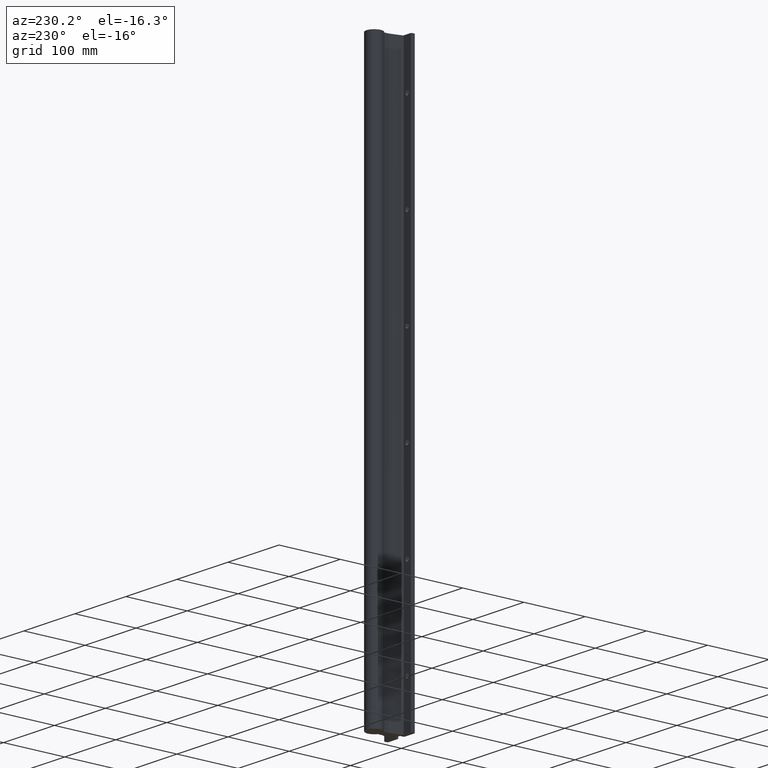
[diagram: clean part render]
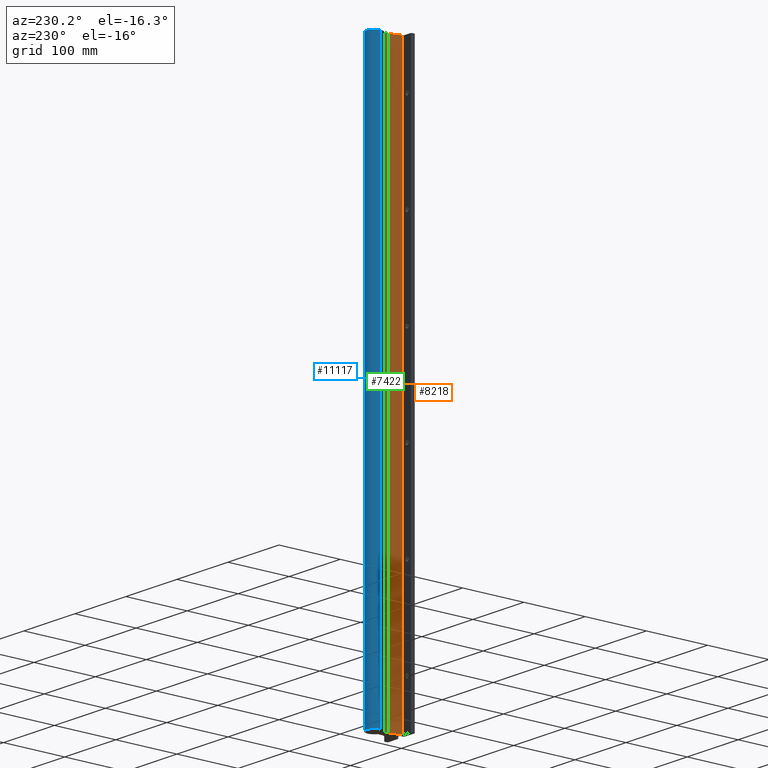
[diagram: same view with three faces highlighted in distinct colors, each labeled with its STEP entity id]
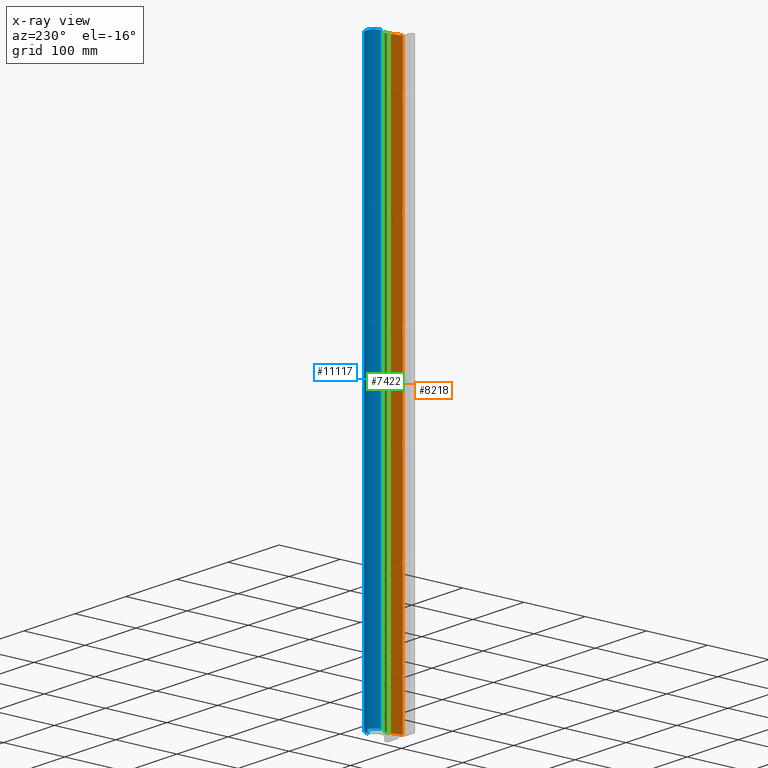
[diagram: x-ray of the same camera — body ghosted, the three highlighted faces saturated]
A machine part, auxiliary view with three faces highlighted in distinct colors.
The next image is the same camera in x-ray (body ghosted, the three faces saturated) — at least one of them is partly hidden behind the body in this view.
Their STEP definitions:

[orange] entity #8218 — the highlighted planar face has unit normal (-0.9703, 0.2419, 0).
#521 = ORIENTED_EDGE ( 'NONE', *, *, #12620, .F. ) ;
#1130 = EDGE_CURVE ( 'NONE', #5240, #2445, #12852, .T. ) ;
#1332 = CARTESIAN_POINT ( 'NONE',  ( -0.2518565171033020911, 1.039099745799999752, -38.49573696227415098 ) ) ;
#1746 = VECTOR ( 'NONE', #11034, 39.37007874015748143 ) ;
#2265 = CARTESIAN_POINT ( 'NONE',  ( -0.4367880495033029109, 0.2973798815999998402, -36.00000000000000000 ) ) ;
#2368 = LINE ( 'NONE', #5565, #5294 ) ;
#2445 = VERTEX_POINT ( 'NONE', #8490 ) ;
#2457 = VERTEX_POINT ( 'NONE', #12541 ) ;
#2466 = CARTESIAN_POINT ( 'NONE',  ( -0.4367880495033028554, 0.2973798815999998402, 0.000000000000000000 ) ) ;
#2655 = DIRECTION ( 'NONE',  ( -0.2419218955872280419, -0.9702957262790979920, 0.000000000000000000 ) ) ;
#3183 = VECTOR ( 'NONE', #13726, 39.37007874015748143 ) ;
#4263 = ORIENTED_EDGE ( 'NONE', *, *, #1130, .F. ) ;
#4444 = VECTOR ( 'NONE', #9186, 39.37007874015748854 ) ;
#5203 = CARTESIAN_POINT ( 'NONE',  ( -0.2518565171033020911, 1.039099745799999752, 0.000000000000000000 ) ) ;
#5240 = VERTEX_POINT ( 'NONE', #2265 ) ;
#5294 = VECTOR ( 'NONE', #8921, 39.37007874015748143 ) ;
#5565 = CARTESIAN_POINT ( 'NONE',  ( -0.4367880495033031329, 0.2973798815999998402, -38.49573696227415098 ) ) ;
#6919 = AXIS2_PLACEMENT_3D ( 'NONE', #8403, #9205, #2655 ) ;
#7771 = PLANE ( 'NONE',  #6919 ) ;
#7789 = EDGE_CURVE ( 'NONE', #2457, #9884, #10364, .T. ) ;
#8218 = ADVANCED_FACE ( 'NONE', ( #9431 ), #7771, .T. ) ;
#8403 = CARTESIAN_POINT ( 'NONE',  ( -0.2518565171033020911, 1.039099745799999752, -38.49573696227415098 ) ) ;
#8490 = CARTESIAN_POINT ( 'NONE',  ( -0.2518565171033020356, 1.039099745799999752, -36.00000000000000000 ) ) ;
#8921 = DIRECTION ( 'NONE',  ( 0.000000000000000000, 0.000000000000000000, 1.000000000000000000 ) ) ;
#9162 = CARTESIAN_POINT ( 'NONE',  ( -0.2518565171033020911, 1.039099745799999752, -36.00000000000000000 ) ) ;
#9186 = DIRECTION ( 'NONE',  ( -0.2419218955872280141, -0.9702957262790979920, 0.000000000000000000 ) ) ;
#9205 = DIRECTION ( 'NONE',  ( -0.9702957262790981030, 0.2419218955872280696, 0.000000000000000000 ) ) ;
#9431 = FACE_OUTER_BOUND ( 'NONE', #11991, .T. ) ;
#9884 = VERTEX_POINT ( 'NONE', #2466 ) ;
#10364 = LINE ( 'NONE', #5203, #4444 ) ;
#10847 = ORIENTED_EDGE ( 'NONE', *, *, #12579, .T. ) ;
#10895 = LINE ( 'NONE', #1332, #1746 ) ;
#11034 = DIRECTION ( 'NONE',  ( 0.000000000000000000, 0.000000000000000000, 1.000000000000000000 ) ) ;
#11991 = EDGE_LOOP ( 'NONE', ( #4263, #10847, #13146, #521 ) ) ;
#12541 = CARTESIAN_POINT ( 'NONE',  ( -0.2518565171033020356, 1.039099745799999752, 0.000000000000000000 ) ) ;
#12579 = EDGE_CURVE ( 'NONE', #5240, #9884, #2368, .T. ) ;
#12620 = EDGE_CURVE ( 'NONE', #2445, #2457, #10895, .T. ) ;
#12852 = LINE ( 'NONE', #9162, #3183 ) ;
#13146 = ORIENTED_EDGE ( 'NONE', *, *, #7789, .F. ) ;
#13726 = DIRECTION ( 'NONE',  ( 0.2419218955872280419, 0.9702957262790979920, -0.000000000000000000 ) ) ;

[blue] entity #11117 — the highlighted cylindrical surface (edge-blend (fillet) strip) has radius 12.7 mm, axis along (0, 0, 1).
#352 = ORIENTED_EDGE ( 'NONE', *, *, #564, .F. ) ;
#355 = VERTEX_POINT ( 'NONE', #7696 ) ;
#564 = EDGE_CURVE ( 'NONE', #8241, #6719, #2088, .T. ) ;
#1055 = ORIENTED_EDGE ( 'NONE', *, *, #1131, .F. ) ;
#1131 = EDGE_CURVE ( 'NONE', #6719, #355, #10565, .T. ) ;
#1420 = DIRECTION ( 'NONE',  ( 0.000000000000000000, 0.000000000000000000, 1.000000000000000000 ) ) ;
#1612 = DIRECTION ( 'NONE',  ( 0.000000000000000000, 0.000000000000000000, 1.000000000000000000 ) ) ;
#1873 = AXIS2_PLACEMENT_3D ( 'NONE', #13480, #9376, #3918 ) ;
#2088 = LINE ( 'NONE', #6342, #6292 ) ;
#2583 = LINE ( 'NONE', #5579, #9837 ) ;
#3918 = DIRECTION ( 'NONE',  ( 1.000000000000000000, 0.000000000000000000, 0.000000000000000000 ) ) ;
#4176 = CARTESIAN_POINT ( 'NONE',  ( 0.000000000000000000, 1.750000000000000000, 0.000000000000000000 ) ) ;
#4228 = DIRECTION ( 'NONE',  ( 0.000000000000000000, 0.000000000000000000, 1.000000000000000000 ) ) ;
#4935 = FACE_OUTER_BOUND ( 'NONE', #9922, .T. ) ;
#4987 = ORIENTED_EDGE ( 'NONE', *, *, #9632, .T. ) ;
#5168 = DIRECTION ( 'NONE',  ( 1.000000000000000000, 0.000000000000000000, 0.000000000000000000 ) ) ;
#5579 = CARTESIAN_POINT ( 'NONE',  ( -0.5000000000000000000, 1.750000000000000000, -36.00000000000000000 ) ) ;
#6292 = VECTOR ( 'NONE', #4228, 39.37007874015748143 ) ;
#6342 = CARTESIAN_POINT ( 'NONE',  ( 0.5000000000000000000, 1.750000000000000000, -36.00000000000000000 ) ) ;
#6719 = VERTEX_POINT ( 'NONE', #11121 ) ;
#7193 = ORIENTED_EDGE ( 'NONE', *, *, #9238, .T. ) ;
#7696 = CARTESIAN_POINT ( 'NONE',  ( -0.5000000000000000000, 1.750000000000000000, 0.000000000000000000 ) ) ;
#8241 = VERTEX_POINT ( 'NONE', #8932 ) ;
#8577 = AXIS2_PLACEMENT_3D ( 'NONE', #12422, #1612, #9061 ) ;
#8932 = CARTESIAN_POINT ( 'NONE',  ( 0.5000000000000000000, 1.750000000000000000, -36.00000000000000000 ) ) ;
#9061 = DIRECTION ( 'NONE',  ( 1.000000000000000000, 0.000000000000000000, 0.000000000000000000 ) ) ;
#9238 = EDGE_CURVE ( 'NONE', #13126, #355, #2583, .T. ) ;
#9376 = DIRECTION ( 'NONE',  ( 0.000000000000000000, 0.000000000000000000, 1.000000000000000000 ) ) ;
#9496 = CARTESIAN_POINT ( 'NONE',  ( -0.5000000000000000000, 1.750000000000000000, -36.00000000000000000 ) ) ;
#9632 = EDGE_CURVE ( 'NONE', #8241, #13126, #13422, .T. ) ;
#9837 = VECTOR ( 'NONE', #1420, 39.37007874015748143 ) ;
#9922 = EDGE_LOOP ( 'NONE', ( #4987, #7193, #1055, #352 ) ) ;
#10037 = CYLINDRICAL_SURFACE ( 'NONE', #8577, 0.5000000000000000000 ) ;
#10565 = CIRCLE ( 'NONE', #12567, 0.5000000000000000000 ) ;
#11117 = ADVANCED_FACE ( 'NONE', ( #4935 ), #10037, .T. ) ;
#11121 = CARTESIAN_POINT ( 'NONE',  ( 0.5000000000000000000, 1.750000000000000000, 0.000000000000000000 ) ) ;
#12422 = CARTESIAN_POINT ( 'NONE',  ( 0.000000000000000000, 1.750000000000000000, -36.00000000000000000 ) ) ;
#12567 = AXIS2_PLACEMENT_3D ( 'NONE', #4176, #13654, #5168 ) ;
#13126 = VERTEX_POINT ( 'NONE', #9496 ) ;
#13422 = CIRCLE ( 'NONE', #1873, 0.5000000000000000000 ) ;
#13480 = CARTESIAN_POINT ( 'NONE',  ( 0.000000000000000000, 1.750000000000000000, -36.00000000000000000 ) ) ;
#13654 = DIRECTION ( 'NONE',  ( 0.000000000000000000, 0.000000000000000000, 1.000000000000000000 ) ) ;

[green] entity #7422 — the highlighted planar face has unit normal (-1, 0, 0).
#567 = EDGE_CURVE ( 'NONE', #12707, #3869, #2427, .T. ) ;
#1134 = CARTESIAN_POINT ( 'NONE',  ( -0.2500000000033027470, 1.305666897938102977, -38.49573696227415098 ) ) ;
#1679 = CARTESIAN_POINT ( 'NONE',  ( -0.2500000000033027470, 1.305666897938102977, -36.00000000000000000 ) ) ;
#2007 = LINE ( 'NONE', #3024, #7921 ) ;
#2427 = LINE ( 'NONE', #1134, #9858 ) ;
#2652 = DIRECTION ( 'NONE',  ( 0.000000000000000000, 0.000000000000000000, 1.000000000000000000 ) ) ;
#2946 = EDGE_LOOP ( 'NONE', ( #7817, #11256, #11822, #8517 ) ) ;
#3024 = CARTESIAN_POINT ( 'NONE',  ( -0.2500000000033027470, 1.054219864300000475, -38.49573696227415098 ) ) ;
#3272 = CARTESIAN_POINT ( 'NONE',  ( -0.2500000000033027470, 1.054219864300000475, -36.00000000000000000 ) ) ;
#3499 = DIRECTION ( 'NONE',  ( 0.000000000000000000, -1.000000000000000000, 0.000000000000000000 ) ) ;
#3869 = VERTEX_POINT ( 'NONE', #4306 ) ;
#4172 = VERTEX_POINT ( 'NONE', #5613 ) ;
#4203 = DIRECTION ( 'NONE',  ( 0.000000000000000000, 0.000000000000000000, 1.000000000000000000 ) ) ;
#4306 = CARTESIAN_POINT ( 'NONE',  ( -0.2500000000033027470, 1.305666897938102977, 0.000000000000000000 ) ) ;
#4328 = EDGE_CURVE ( 'NONE', #10025, #4172, #2007, .T. ) ;
#5505 = PLANE ( 'NONE',  #12058 ) ;
#5567 = CARTESIAN_POINT ( 'NONE',  ( -0.2500000000033027470, 1.305666897938102977, -36.00000000000000000 ) ) ;
#5613 = CARTESIAN_POINT ( 'NONE',  ( -0.2500000000033027470, 1.054219864300000475, 0.000000000000000000 ) ) ;
#6679 = LINE ( 'NONE', #12122, #11986 ) ;
#6705 = DIRECTION ( 'NONE',  ( 0.000000000000000000, 0.000000000000000000, 1.000000000000000000 ) ) ;
#7422 = ADVANCED_FACE ( 'NONE', ( #9630 ), #5505, .T. ) ;
#7817 = ORIENTED_EDGE ( 'NONE', *, *, #13392, .F. ) ;
#7921 = VECTOR ( 'NONE', #4203, 39.37007874015748143 ) ;
#8517 = ORIENTED_EDGE ( 'NONE', *, *, #567, .F. ) ;
#8865 = CARTESIAN_POINT ( 'NONE',  ( -0.2500000000033027470, 1.305666897938102977, -38.49573696227415098 ) ) ;
#9630 = FACE_OUTER_BOUND ( 'NONE', #2946, .T. ) ;
#9831 = DIRECTION ( 'NONE',  ( 0.000000000000000000, 1.000000000000000000, -0.000000000000000000 ) ) ;
#9858 = VECTOR ( 'NONE', #6705, 39.37007874015748143 ) ;
#10025 = VERTEX_POINT ( 'NONE', #3272 ) ;
#10968 = LINE ( 'NONE', #5567, #11547 ) ;
#11048 = DIRECTION ( 'NONE',  ( -1.000000000000000000, 0.000000000000000000, 0.000000000000000000 ) ) ;
#11256 = ORIENTED_EDGE ( 'NONE', *, *, #4328, .T. ) ;
#11547 = VECTOR ( 'NONE', #9831, 39.37007874015748143 ) ;
#11822 = ORIENTED_EDGE ( 'NONE', *, *, #12164, .F. ) ;
#11986 = VECTOR ( 'NONE', #3499, 39.37007874015748143 ) ;
#12058 = AXIS2_PLACEMENT_3D ( 'NONE', #8865, #11048, #2652 ) ;
#12122 = CARTESIAN_POINT ( 'NONE',  ( -0.2500000000033027470, 1.305666897938102977, 0.000000000000000000 ) ) ;
#12164 = EDGE_CURVE ( 'NONE', #3869, #4172, #6679, .T. ) ;
#12707 = VERTEX_POINT ( 'NONE', #1679 ) ;
#13392 = EDGE_CURVE ( 'NONE', #10025, #12707, #10968, .T. ) ;